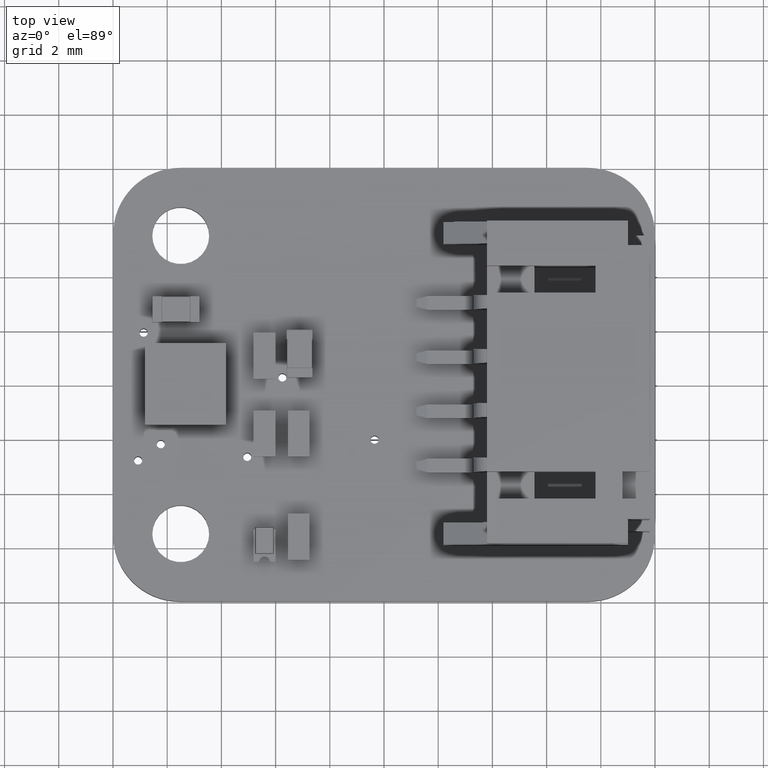
[diagram: clean part render]
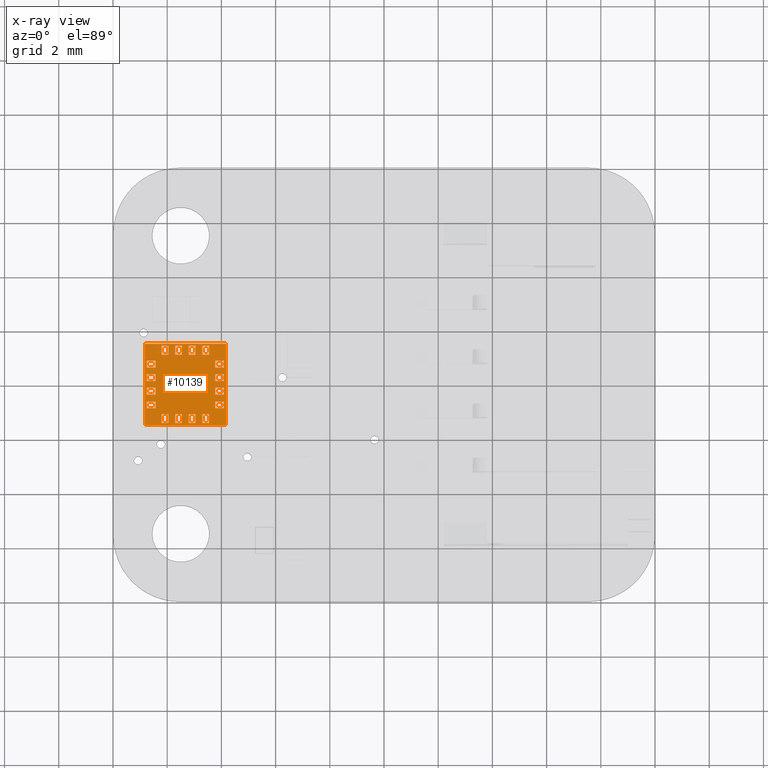
[diagram: x-ray — body ghosted, one internal face saturated and labeled with its STEP entity id]
A machine part, top view, then the same camera in x-ray: the body is ghosted and one INTERNAL B-rep face — a face not visible from any outside direction — is saturated and labeled: STEP entity #10139.
In plain terms, the highlighted planar face has unit normal (0, -0, -1).
Its self-contained STEP definition (entity closure, byte-faithful):
#9997 = EDGE_CURVE('',#9998,#10000,#10002,.T.);
#9998 = VERTEX_POINT('',#9999);
#9999 = CARTESIAN_POINT('',(1.5,0.,1.5));
#10000 = VERTEX_POINT('',#10001);
#10001 = CARTESIAN_POINT('',(1.5,0.,-1.5));
#10002 = LINE('',#10003,#10004);
#10003 = CARTESIAN_POINT('',(1.5,0.,1.5));
#10004 = VECTOR('',#10005,1.);
#10005 = DIRECTION('',(0.,0.,-1.));
#10037 = EDGE_CURVE('',#10000,#10038,#10040,.T.);
#10038 = VERTEX_POINT('',#10039);
#10039 = CARTESIAN_POINT('',(-1.5,0.,-1.5));
#10040 = LINE('',#10041,#10042);
#10041 = CARTESIAN_POINT('',(-1.5,0.,-1.5));
#10042 = VECTOR('',#10043,1.);
#10043 = DIRECTION('',(-1.,-0.,-0.));
#10068 = EDGE_CURVE('',#10038,#10069,#10071,.T.);
#10069 = VERTEX_POINT('',#10070);
#10070 = CARTESIAN_POINT('',(-1.5,0.,1.5));
#10071 = LINE('',#10072,#10073);
#10072 = CARTESIAN_POINT('',(-1.5,0.,1.5));
#10073 = VECTOR('',#10074,1.);
#10074 = DIRECTION('',(-0.,-0.,1.));
#10099 = EDGE_CURVE('',#10069,#9998,#10100,.T.);
#10100 = LINE('',#10101,#10102);
#10101 = CARTESIAN_POINT('',(-1.5,0.,1.5));
#10102 = VECTOR('',#10103,1.);
#10103 = DIRECTION('',(1.,0.,0.));
#10139 = ADVANCED_FACE('',(#10140,#10174,#10208,#10242,#10276,#10310,
    #10344,#10378,#10412,#10446,#10480,#10514,#10548,#10582,#10616,
    #10650,#10684),#10690,.T.);
#10140 = FACE_BOUND('',#10141,.T.);
#10141 = EDGE_LOOP('',(#10142,#10152,#10160,#10168));
#10142 = ORIENTED_EDGE('',*,*,#10143,.F.);
#10143 = EDGE_CURVE('',#10144,#10146,#10148,.T.);
#10144 = VERTEX_POINT('',#10145);
#10145 = CARTESIAN_POINT('',(-0.375,0.,1.425));
#10146 = VERTEX_POINT('',#10147);
#10147 = CARTESIAN_POINT('',(-0.375,-0.,1.1));
#10148 = LINE('',#10149,#10150);
#10149 = CARTESIAN_POINT('',(-0.375,0.,1.425));
#10150 = VECTOR('',#10151,1.);
#10151 = DIRECTION('',(0.,0.,-1.));
#10152 = ORIENTED_EDGE('',*,*,#10153,.F.);
#10153 = EDGE_CURVE('',#10154,#10144,#10156,.T.);
#10154 = VERTEX_POINT('',#10155);
#10155 = CARTESIAN_POINT('',(-0.125,0.,1.425));
#10156 = LINE('',#10157,#10158);
#10157 = CARTESIAN_POINT('',(-0.375,0.,1.425));
#10158 = VECTOR('',#10159,1.);
#10159 = DIRECTION('',(-1.,-0.,-0.));
#10160 = ORIENTED_EDGE('',*,*,#10161,.F.);
#10161 = EDGE_CURVE('',#10162,#10154,#10164,.T.);
#10162 = VERTEX_POINT('',#10163);
#10163 = CARTESIAN_POINT('',(-0.125,0.,1.1));
#10164 = LINE('',#10165,#10166);
#10165 = CARTESIAN_POINT('',(-0.125,0.,1.425));
#10166 = VECTOR('',#10167,1.);
#10167 = DIRECTION('',(-0.,-0.,1.));
#10168 = ORIENTED_EDGE('',*,*,#10169,.F.);
#10169 = EDGE_CURVE('',#10146,#10162,#10170,.T.);
#10170 = LINE('',#10171,#10172);
#10171 = CARTESIAN_POINT('',(-0.375,0.,1.1));
#10172 = VECTOR('',#10173,1.);
#10173 = DIRECTION('',(1.,0.,0.));
#10174 = FACE_BOUND('',#10175,.T.);
#10175 = EDGE_LOOP('',(#10176,#10186,#10194,#10202));
#10176 = ORIENTED_EDGE('',*,*,#10177,.F.);
#10177 = EDGE_CURVE('',#10178,#10180,#10182,.T.);
#10178 = VERTEX_POINT('',#10179);
#10179 = CARTESIAN_POINT('',(0.125,-0.,1.425));
#10180 = VERTEX_POINT('',#10181);
#10181 = CARTESIAN_POINT('',(0.125,0.,1.1));
#10182 = LINE('',#10183,#10184);
#10183 = CARTESIAN_POINT('',(0.125,-0.,1.425));
#10184 = VECTOR('',#10185,1.);
#10185 = DIRECTION('',(0.,0.,-1.));
#10186 = ORIENTED_EDGE('',*,*,#10187,.F.);
#10187 = EDGE_CURVE('',#10188,#10178,#10190,.T.);
#10188 = VERTEX_POINT('',#10189);
#10189 = CARTESIAN_POINT('',(0.375,-0.,1.425));
#10190 = LINE('',#10191,#10192);
#10191 = CARTESIAN_POINT('',(0.125,-0.,1.425));
#10192 = VECTOR('',#10193,1.);
#10193 = DIRECTION('',(-1.,-0.,-0.));
#10194 = ORIENTED_EDGE('',*,*,#10195,.F.);
#10195 = EDGE_CURVE('',#10196,#10188,#10198,.T.);
#10196 = VERTEX_POINT('',#10197);
#10197 = CARTESIAN_POINT('',(0.375,-0.,1.1));
#10198 = LINE('',#10199,#10200);
#10199 = CARTESIAN_POINT('',(0.375,-0.,1.425));
#10200 = VECTOR('',#10201,1.);
#10201 = DIRECTION('',(-0.,-0.,1.));
#10202 = ORIENTED_EDGE('',*,*,#10203,.F.);
#10203 = EDGE_CURVE('',#10180,#10196,#10204,.T.);
#10204 = LINE('',#10205,#10206);
#10205 = CARTESIAN_POINT('',(0.125,-0.,1.1));
#10206 = VECTOR('',#10207,1.);
#10207 = DIRECTION('',(1.,0.,0.));
#10208 = FACE_BOUND('',#10209,.T.);
#10209 = EDGE_LOOP('',(#10210,#10220,#10228,#10236));
#10210 = ORIENTED_EDGE('',*,*,#10211,.F.);
#10211 = EDGE_CURVE('',#10212,#10214,#10216,.T.);
#10212 = VERTEX_POINT('',#10213);
#10213 = CARTESIAN_POINT('',(0.625,-0.,1.425));
#10214 = VERTEX_POINT('',#10215);
#10215 = CARTESIAN_POINT('',(0.625,0.,1.1));
#10216 = LINE('',#10217,#10218);
#10217 = CARTESIAN_POINT('',(0.625,-0.,1.425));
#10218 = VECTOR('',#10219,1.);
#10219 = DIRECTION('',(0.,0.,-1.));
#10220 = ORIENTED_EDGE('',*,*,#10221,.F.);
#10221 = EDGE_CURVE('',#10222,#10212,#10224,.T.);
#10222 = VERTEX_POINT('',#10223);
#10223 = CARTESIAN_POINT('',(0.875,-0.,1.425));
#10224 = LINE('',#10225,#10226);
#10225 = CARTESIAN_POINT('',(0.625,-0.,1.425));
#10226 = VECTOR('',#10227,1.);
#10227 = DIRECTION('',(-1.,-0.,-0.));
#10228 = ORIENTED_EDGE('',*,*,#10229,.F.);
#10229 = EDGE_CURVE('',#10230,#10222,#10232,.T.);
#10230 = VERTEX_POINT('',#10231);
#10231 = CARTESIAN_POINT('',(0.875,-0.,1.1));
#10232 = LINE('',#10233,#10234);
#10233 = CARTESIAN_POINT('',(0.875,-0.,1.425));
#10234 = VECTOR('',#10235,1.);
#10235 = DIRECTION('',(-0.,-0.,1.));
#10236 = ORIENTED_EDGE('',*,*,#10237,.F.);
#10237 = EDGE_CURVE('',#10214,#10230,#10238,.T.);
#10238 = LINE('',#10239,#10240);
#10239 = CARTESIAN_POINT('',(0.625,-0.,1.1));
#10240 = VECTOR('',#10241,1.);
#10241 = DIRECTION('',(1.,0.,0.));
#10242 = FACE_BOUND('',#10243,.T.);
#10243 = EDGE_LOOP('',(#10244,#10254,#10262,#10270));
#10244 = ORIENTED_EDGE('',*,*,#10245,.F.);
#10245 = EDGE_CURVE('',#10246,#10248,#10250,.T.);
#10246 = VERTEX_POINT('',#10247);
#10247 = CARTESIAN_POINT('',(1.425,-0.,0.875));
#10248 = VERTEX_POINT('',#10249);
#10249 = CARTESIAN_POINT('',(1.1,0.,0.875));
#10250 = LINE('',#10251,#10252);
#10251 = CARTESIAN_POINT('',(1.425,-0.,0.875));
#10252 = VECTOR('',#10253,1.);
#10253 = DIRECTION('',(-1.,0.,0.));
#10254 = ORIENTED_EDGE('',*,*,#10255,.F.);
#10255 = EDGE_CURVE('',#10256,#10246,#10258,.T.);
#10256 = VERTEX_POINT('',#10257);
#10257 = CARTESIAN_POINT('',(1.425,-0.,0.625));
#10258 = LINE('',#10259,#10260);
#10259 = CARTESIAN_POINT('',(1.425,-0.,0.875));
#10260 = VECTOR('',#10261,1.);
#10261 = DIRECTION('',(-0.,-0.,1.));
#10262 = ORIENTED_EDGE('',*,*,#10263,.F.);
#10263 = EDGE_CURVE('',#10264,#10256,#10266,.T.);
#10264 = VERTEX_POINT('',#10265);
#10265 = CARTESIAN_POINT('',(1.1,-0.,0.625));
#10266 = LINE('',#10267,#10268);
#10267 = CARTESIAN_POINT('',(1.425,-0.,0.625));
#10268 = VECTOR('',#10269,1.);
#10269 = DIRECTION('',(1.,-0.,-0.));
#10270 = ORIENTED_EDGE('',*,*,#10271,.F.);
#10271 = EDGE_CURVE('',#10248,#10264,#10272,.T.);
#10272 = LINE('',#10273,#10274);
#10273 = CARTESIAN_POINT('',(1.1,-0.,0.875));
#10274 = VECTOR('',#10275,1.);
#10275 = DIRECTION('',(0.,0.,-1.));
#10276 = FACE_BOUND('',#10277,.T.);
#10277 = EDGE_LOOP('',(#10278,#10288,#10296,#10304));
#10278 = ORIENTED_EDGE('',*,*,#10279,.F.);
#10279 = EDGE_CURVE('',#10280,#10282,#10284,.T.);
#10280 = VERTEX_POINT('',#10281);
#10281 = CARTESIAN_POINT('',(1.425,-0.,0.375));
#10282 = VERTEX_POINT('',#10283);
#10283 = CARTESIAN_POINT('',(1.1,0.,0.375));
#10284 = LINE('',#10285,#10286);
#10285 = CARTESIAN_POINT('',(1.425,-0.,0.375));
#10286 = VECTOR('',#10287,1.);
#10287 = DIRECTION('',(-1.,0.,-1.668003342285E-16));
#10288 = ORIENTED_EDGE('',*,*,#10289,.F.);
#10289 = EDGE_CURVE('',#10290,#10280,#10292,.T.);
#10290 = VERTEX_POINT('',#10291);
#10291 = CARTESIAN_POINT('',(1.425,-0.,0.125));
#10292 = LINE('',#10293,#10294);
#10293 = CARTESIAN_POINT('',(1.425,-0.,0.375));
#10294 = VECTOR('',#10295,1.);
#10295 = DIRECTION('',(-0.,-0.,1.));
#10296 = ORIENTED_EDGE('',*,*,#10297,.F.);
#10297 = EDGE_CURVE('',#10298,#10290,#10300,.T.);
#10298 = VERTEX_POINT('',#10299);
#10299 = CARTESIAN_POINT('',(1.1,-0.,0.125));
#10300 = LINE('',#10301,#10302);
#10301 = CARTESIAN_POINT('',(1.425,-0.,0.125));
#10302 = VECTOR('',#10303,1.);
#10303 = DIRECTION('',(1.,-0.,8.340016711427E-17));
#10304 = ORIENTED_EDGE('',*,*,#10305,.F.);
#10305 = EDGE_CURVE('',#10282,#10298,#10306,.T.);
#10306 = LINE('',#10307,#10308);
#10307 = CARTESIAN_POINT('',(1.1,-0.,0.375));
#10308 = VECTOR('',#10309,1.);
#10309 = DIRECTION('',(0.,0.,-1.));
#10310 = FACE_BOUND('',#10311,.T.);
#10311 = EDGE_LOOP('',(#10312,#10322,#10330,#10338));
#10312 = ORIENTED_EDGE('',*,*,#10313,.F.);
#10313 = EDGE_CURVE('',#10314,#10316,#10318,.T.);
#10314 = VERTEX_POINT('',#10315);
#10315 = CARTESIAN_POINT('',(1.425,0.,-0.125));
#10316 = VERTEX_POINT('',#10317);
#10317 = CARTESIAN_POINT('',(1.1,0.,-0.125));
#10318 = LINE('',#10319,#10320);
#10319 = CARTESIAN_POINT('',(1.425,0.,-0.125));
#10320 = VECTOR('',#10321,1.);
#10321 = DIRECTION('',(-1.,0.,-8.340016711427E-17));
#10322 = ORIENTED_EDGE('',*,*,#10323,.F.);
#10323 = EDGE_CURVE('',#10324,#10314,#10326,.T.);
#10324 = VERTEX_POINT('',#10325);
#10325 = CARTESIAN_POINT('',(1.425,0.,-0.375));
#10326 = LINE('',#10327,#10328);
#10327 = CARTESIAN_POINT('',(1.425,0.,-0.125));
#10328 = VECTOR('',#10329,1.);
#10329 = DIRECTION('',(-0.,-0.,1.));
#10330 = ORIENTED_EDGE('',*,*,#10331,.F.);
#10331 = EDGE_CURVE('',#10332,#10324,#10334,.T.);
#10332 = VERTEX_POINT('',#10333);
#10333 = CARTESIAN_POINT('',(1.1,0.,-0.375));
#10334 = LINE('',#10335,#10336);
#10335 = CARTESIAN_POINT('',(1.425,0.,-0.375));
#10336 = VECTOR('',#10337,1.);
#10337 = DIRECTION('',(1.,-0.,1.668003342285E-16));
#10338 = ORIENTED_EDGE('',*,*,#10339,.F.);
#10339 = EDGE_CURVE('',#10316,#10332,#10340,.T.);
#10340 = LINE('',#10341,#10342);
#10341 = CARTESIAN_POINT('',(1.1,0.,-0.125));
#10342 = VECTOR('',#10343,1.);
#10343 = DIRECTION('',(0.,0.,-1.));
#10344 = FACE_BOUND('',#10345,.T.);
#10345 = EDGE_LOOP('',(#10346,#10356,#10364,#10372));
#10346 = ORIENTED_EDGE('',*,*,#10347,.F.);
#10347 = EDGE_CURVE('',#10348,#10350,#10352,.T.);
#10348 = VERTEX_POINT('',#10349);
#10349 = CARTESIAN_POINT('',(1.425,0.,-0.625));
#10350 = VERTEX_POINT('',#10351);
#10351 = CARTESIAN_POINT('',(1.1,0.,-0.625));
#10352 = LINE('',#10353,#10354);
#10353 = CARTESIAN_POINT('',(1.425,0.,-0.625));
#10354 = VECTOR('',#10355,1.);
#10355 = DIRECTION('',(-1.,0.,0.));
#10356 = ORIENTED_EDGE('',*,*,#10357,.F.);
#10357 = EDGE_CURVE('',#10358,#10348,#10360,.T.);
#10358 = VERTEX_POINT('',#10359);
#10359 = CARTESIAN_POINT('',(1.425,0.,-0.875));
#10360 = LINE('',#10361,#10362);
#10361 = CARTESIAN_POINT('',(1.425,0.,-0.625));
#10362 = VECTOR('',#10363,1.);
#10363 = DIRECTION('',(-0.,-0.,1.));
#10364 = ORIENTED_EDGE('',*,*,#10365,.F.);
#10365 = EDGE_CURVE('',#10366,#10358,#10368,.T.);
#10366 = VERTEX_POINT('',#10367);
#10367 = CARTESIAN_POINT('',(1.1,0.,-0.875));
#10368 = LINE('',#10369,#10370);
#10369 = CARTESIAN_POINT('',(1.425,0.,-0.875));
#10370 = VECTOR('',#10371,1.);
#10371 = DIRECTION('',(1.,-0.,-0.));
#10372 = ORIENTED_EDGE('',*,*,#10373,.F.);
#10373 = EDGE_CURVE('',#10350,#10366,#10374,.T.);
#10374 = LINE('',#10375,#10376);
#10375 = CARTESIAN_POINT('',(1.1,0.,-0.625));
#10376 = VECTOR('',#10377,1.);
#10377 = DIRECTION('',(0.,0.,-1.));
#10378 = FACE_BOUND('',#10379,.T.);
#10379 = EDGE_LOOP('',(#10380,#10390,#10398,#10406));
#10380 = ORIENTED_EDGE('',*,*,#10381,.F.);
#10381 = EDGE_CURVE('',#10382,#10384,#10386,.T.);
#10382 = VERTEX_POINT('',#10383);
#10383 = CARTESIAN_POINT('',(0.875,0.,-1.425));
#10384 = VERTEX_POINT('',#10385);
#10385 = CARTESIAN_POINT('',(0.875,-0.,-1.1));
#10386 = LINE('',#10387,#10388);
#10387 = CARTESIAN_POINT('',(0.875,0.,-1.425));
#10388 = VECTOR('',#10389,1.);
#10389 = DIRECTION('',(-3.336006684571E-16,0.,1.));
#10390 = ORIENTED_EDGE('',*,*,#10391,.F.);
#10391 = EDGE_CURVE('',#10392,#10382,#10394,.T.);
#10392 = VERTEX_POINT('',#10393);
#10393 = CARTESIAN_POINT('',(0.625,0.,-1.425));
#10394 = LINE('',#10395,#10396);
#10395 = CARTESIAN_POINT('',(0.875,0.,-1.425));
#10396 = VECTOR('',#10397,1.);
#10397 = DIRECTION('',(1.,-0.,-0.));
#10398 = ORIENTED_EDGE('',*,*,#10399,.F.);
#10399 = EDGE_CURVE('',#10400,#10392,#10402,.T.);
#10400 = VERTEX_POINT('',#10401);
#10401 = CARTESIAN_POINT('',(0.625,0.,-1.1));
#10402 = LINE('',#10403,#10404);
#10403 = CARTESIAN_POINT('',(0.625,0.,-1.425));
#10404 = VECTOR('',#10405,1.);
#10405 = DIRECTION('',(3.336006684571E-16,-0.,-1.));
#10406 = ORIENTED_EDGE('',*,*,#10407,.F.);
#10407 = EDGE_CURVE('',#10384,#10400,#10408,.T.);
#10408 = LINE('',#10409,#10410);
#10409 = CARTESIAN_POINT('',(0.875,0.,-1.1));
#10410 = VECTOR('',#10411,1.);
#10411 = DIRECTION('',(-1.,0.,0.));
#10412 = FACE_BOUND('',#10413,.T.);
#10413 = EDGE_LOOP('',(#10414,#10424,#10432,#10440));
#10414 = ORIENTED_EDGE('',*,*,#10415,.F.);
#10415 = EDGE_CURVE('',#10416,#10418,#10420,.T.);
#10416 = VERTEX_POINT('',#10417);
#10417 = CARTESIAN_POINT('',(0.375,0.,-1.425));
#10418 = VERTEX_POINT('',#10419);
#10419 = CARTESIAN_POINT('',(0.375,-0.,-1.1));
#10420 = LINE('',#10421,#10422);
#10421 = CARTESIAN_POINT('',(0.375,0.,-1.425));
#10422 = VECTOR('',#10423,1.);
#10423 = DIRECTION('',(-1.668003342285E-16,0.,1.));
#10424 = ORIENTED_EDGE('',*,*,#10425,.F.);
#10425 = EDGE_CURVE('',#10426,#10416,#10428,.T.);
#10426 = VERTEX_POINT('',#10427);
#10427 = CARTESIAN_POINT('',(0.125,0.,-1.425));
#10428 = LINE('',#10429,#10430);
#10429 = CARTESIAN_POINT('',(0.375,0.,-1.425));
#10430 = VECTOR('',#10431,1.);
#10431 = DIRECTION('',(1.,-0.,-0.));
#10432 = ORIENTED_EDGE('',*,*,#10433,.F.);
#10433 = EDGE_CURVE('',#10434,#10426,#10436,.T.);
#10434 = VERTEX_POINT('',#10435);
#10435 = CARTESIAN_POINT('',(0.125,0.,-1.1));
#10436 = LINE('',#10437,#10438);
#10437 = CARTESIAN_POINT('',(0.125,0.,-1.425));
#10438 = VECTOR('',#10439,1.);
#10439 = DIRECTION('',(8.340016711427E-17,-0.,-1.));
#10440 = ORIENTED_EDGE('',*,*,#10441,.F.);
#10441 = EDGE_CURVE('',#10418,#10434,#10442,.T.);
#10442 = LINE('',#10443,#10444);
#10443 = CARTESIAN_POINT('',(0.375,0.,-1.1));
#10444 = VECTOR('',#10445,1.);
#10445 = DIRECTION('',(-1.,0.,0.));
#10446 = FACE_BOUND('',#10447,.T.);
#10447 = EDGE_LOOP('',(#10448,#10458,#10466,#10474));
#10448 = ORIENTED_EDGE('',*,*,#10449,.F.);
#10449 = EDGE_CURVE('',#10450,#10452,#10454,.T.);
#10450 = VERTEX_POINT('',#10451);
#10451 = CARTESIAN_POINT('',(-0.125,0.,-1.425));
#10452 = VERTEX_POINT('',#10453);
#10453 = CARTESIAN_POINT('',(-0.125,0.,-1.1));
#10454 = LINE('',#10455,#10456);
#10455 = CARTESIAN_POINT('',(-0.125,0.,-1.425));
#10456 = VECTOR('',#10457,1.);
#10457 = DIRECTION('',(-8.340016711427E-17,0.,1.));
#10458 = ORIENTED_EDGE('',*,*,#10459,.F.);
#10459 = EDGE_CURVE('',#10460,#10450,#10462,.T.);
#10460 = VERTEX_POINT('',#10461);
#10461 = CARTESIAN_POINT('',(-0.375,0.,-1.425));
#10462 = LINE('',#10463,#10464);
#10463 = CARTESIAN_POINT('',(-0.125,0.,-1.425));
#10464 = VECTOR('',#10465,1.);
#10465 = DIRECTION('',(1.,-0.,-0.));
#10466 = ORIENTED_EDGE('',*,*,#10467,.F.);
#10467 = EDGE_CURVE('',#10468,#10460,#10470,.T.);
#10468 = VERTEX_POINT('',#10469);
#10469 = CARTESIAN_POINT('',(-0.375,0.,-1.1));
#10470 = LINE('',#10471,#10472);
#10471 = CARTESIAN_POINT('',(-0.375,0.,-1.425));
#10472 = VECTOR('',#10473,1.);
#10473 = DIRECTION('',(1.668003342285E-16,-0.,-1.));
#10474 = ORIENTED_EDGE('',*,*,#10475,.F.);
#10475 = EDGE_CURVE('',#10452,#10468,#10476,.T.);
#10476 = LINE('',#10477,#10478);
#10477 = CARTESIAN_POINT('',(-0.125,0.,-1.1));
#10478 = VECTOR('',#10479,1.);
#10479 = DIRECTION('',(-1.,0.,0.));
#10480 = FACE_BOUND('',#10481,.T.);
#10481 = EDGE_LOOP('',(#10482,#10492,#10500,#10508));
#10482 = ORIENTED_EDGE('',*,*,#10483,.F.);
#10483 = EDGE_CURVE('',#10484,#10486,#10488,.T.);
#10484 = VERTEX_POINT('',#10485);
#10485 = CARTESIAN_POINT('',(-0.625,0.,-1.425));
#10486 = VERTEX_POINT('',#10487);
#10487 = CARTESIAN_POINT('',(-0.625,0.,-1.1));
#10488 = LINE('',#10489,#10490);
#10489 = CARTESIAN_POINT('',(-0.625,0.,-1.425));
#10490 = VECTOR('',#10491,1.);
#10491 = DIRECTION('',(-3.336006684571E-16,0.,1.));
#10492 = ORIENTED_EDGE('',*,*,#10493,.F.);
#10493 = EDGE_CURVE('',#10494,#10484,#10496,.T.);
#10494 = VERTEX_POINT('',#10495);
#10495 = CARTESIAN_POINT('',(-0.875,0.,-1.425));
#10496 = LINE('',#10497,#10498);
#10497 = CARTESIAN_POINT('',(-0.625,0.,-1.425));
#10498 = VECTOR('',#10499,1.);
#10499 = DIRECTION('',(1.,-0.,-0.));
#10500 = ORIENTED_EDGE('',*,*,#10501,.F.);
#10501 = EDGE_CURVE('',#10502,#10494,#10504,.T.);
#10502 = VERTEX_POINT('',#10503);
#10503 = CARTESIAN_POINT('',(-0.875,0.,-1.1));
#10504 = LINE('',#10505,#10506);
#10505 = CARTESIAN_POINT('',(-0.875,0.,-1.425));
#10506 = VECTOR('',#10507,1.);
#10507 = DIRECTION('',(3.336006684571E-16,-0.,-1.));
#10508 = ORIENTED_EDGE('',*,*,#10509,.F.);
#10509 = EDGE_CURVE('',#10486,#10502,#10510,.T.);
#10510 = LINE('',#10511,#10512);
#10511 = CARTESIAN_POINT('',(-0.625,0.,-1.1));
#10512 = VECTOR('',#10513,1.);
#10513 = DIRECTION('',(-1.,0.,0.));
#10514 = FACE_BOUND('',#10515,.T.);
#10515 = EDGE_LOOP('',(#10516,#10526,#10534,#10542));
#10516 = ORIENTED_EDGE('',*,*,#10517,.F.);
#10517 = EDGE_CURVE('',#10518,#10520,#10522,.T.);
#10518 = VERTEX_POINT('',#10519);
#10519 = CARTESIAN_POINT('',(-1.425,0.,-0.875));
#10520 = VERTEX_POINT('',#10521);
#10521 = CARTESIAN_POINT('',(-1.1,-0.,-0.875));
#10522 = LINE('',#10523,#10524);
#10523 = CARTESIAN_POINT('',(-1.425,0.,-0.875));
#10524 = VECTOR('',#10525,1.);
#10525 = DIRECTION('',(1.,0.,0.));
#10526 = ORIENTED_EDGE('',*,*,#10527,.F.);
#10527 = EDGE_CURVE('',#10528,#10518,#10530,.T.);
#10528 = VERTEX_POINT('',#10529);
#10529 = CARTESIAN_POINT('',(-1.425,0.,-0.625));
#10530 = LINE('',#10531,#10532);
#10531 = CARTESIAN_POINT('',(-1.425,0.,-0.875));
#10532 = VECTOR('',#10533,1.);
#10533 = DIRECTION('',(-0.,-0.,-1.));
#10534 = ORIENTED_EDGE('',*,*,#10535,.F.);
#10535 = EDGE_CURVE('',#10536,#10528,#10538,.T.);
#10536 = VERTEX_POINT('',#10537);
#10537 = CARTESIAN_POINT('',(-1.1,0.,-0.625));
#10538 = LINE('',#10539,#10540);
#10539 = CARTESIAN_POINT('',(-1.425,0.,-0.625));
#10540 = VECTOR('',#10541,1.);
#10541 = DIRECTION('',(-1.,-0.,-0.));
#10542 = ORIENTED_EDGE('',*,*,#10543,.F.);
#10543 = EDGE_CURVE('',#10520,#10536,#10544,.T.);
#10544 = LINE('',#10545,#10546);
#10545 = CARTESIAN_POINT('',(-1.1,0.,-0.875));
#10546 = VECTOR('',#10547,1.);
#10547 = DIRECTION('',(0.,0.,1.));
#10548 = FACE_BOUND('',#10549,.T.);
#10549 = EDGE_LOOP('',(#10550,#10560,#10568,#10576));
#10550 = ORIENTED_EDGE('',*,*,#10551,.F.);
#10551 = EDGE_CURVE('',#10552,#10554,#10556,.T.);
#10552 = VERTEX_POINT('',#10553);
#10553 = CARTESIAN_POINT('',(-1.425,0.,-0.375));
#10554 = VERTEX_POINT('',#10555);
#10555 = CARTESIAN_POINT('',(-1.1,-0.,-0.375));
#10556 = LINE('',#10557,#10558);
#10557 = CARTESIAN_POINT('',(-1.425,0.,-0.375));
#10558 = VECTOR('',#10559,1.);
#10559 = DIRECTION('',(1.,0.,1.668003342285E-16));
#10560 = ORIENTED_EDGE('',*,*,#10561,.F.);
#10561 = EDGE_CURVE('',#10562,#10552,#10564,.T.);
#10562 = VERTEX_POINT('',#10563);
#10563 = CARTESIAN_POINT('',(-1.425,0.,-0.125));
#10564 = LINE('',#10565,#10566);
#10565 = CARTESIAN_POINT('',(-1.425,0.,-0.375));
#10566 = VECTOR('',#10567,1.);
#10567 = DIRECTION('',(-0.,-0.,-1.));
#10568 = ORIENTED_EDGE('',*,*,#10569,.F.);
#10569 = EDGE_CURVE('',#10570,#10562,#10572,.T.);
#10570 = VERTEX_POINT('',#10571);
#10571 = CARTESIAN_POINT('',(-1.1,0.,-0.125));
#10572 = LINE('',#10573,#10574);
#10573 = CARTESIAN_POINT('',(-1.425,0.,-0.125));
#10574 = VECTOR('',#10575,1.);
#10575 = DIRECTION('',(-1.,-0.,-2.502005013428E-16));
#10576 = ORIENTED_EDGE('',*,*,#10577,.F.);
#10577 = EDGE_CURVE('',#10554,#10570,#10578,.T.);
#10578 = LINE('',#10579,#10580);
#10579 = CARTESIAN_POINT('',(-1.1,0.,-0.375));
#10580 = VECTOR('',#10581,1.);
#10581 = DIRECTION('',(0.,0.,1.));
#10582 = FACE_BOUND('',#10583,.T.);
#10583 = EDGE_LOOP('',(#10584,#10594,#10602,#10610));
#10584 = ORIENTED_EDGE('',*,*,#10585,.F.);
#10585 = EDGE_CURVE('',#10586,#10588,#10590,.T.);
#10586 = VERTEX_POINT('',#10587);
#10587 = CARTESIAN_POINT('',(-1.425,0.,0.125));
#10588 = VERTEX_POINT('',#10589);
#10589 = CARTESIAN_POINT('',(-1.1,0.,0.125));
#10590 = LINE('',#10591,#10592);
#10591 = CARTESIAN_POINT('',(-1.425,0.,0.125));
#10592 = VECTOR('',#10593,1.);
#10593 = DIRECTION('',(1.,0.,2.502005013428E-16));
#10594 = ORIENTED_EDGE('',*,*,#10595,.F.);
#10595 = EDGE_CURVE('',#10596,#10586,#10598,.T.);
#10596 = VERTEX_POINT('',#10597);
#10597 = CARTESIAN_POINT('',(-1.425,0.,0.375));
#10598 = LINE('',#10599,#10600);
#10599 = CARTESIAN_POINT('',(-1.425,0.,0.125));
#10600 = VECTOR('',#10601,1.);
#10601 = DIRECTION('',(-0.,-0.,-1.));
#10602 = ORIENTED_EDGE('',*,*,#10603,.F.);
#10603 = EDGE_CURVE('',#10604,#10596,#10606,.T.);
#10604 = VERTEX_POINT('',#10605);
#10605 = CARTESIAN_POINT('',(-1.1,0.,0.375));
#10606 = LINE('',#10607,#10608);
#10607 = CARTESIAN_POINT('',(-1.425,0.,0.375));
#10608 = VECTOR('',#10609,1.);
#10609 = DIRECTION('',(-1.,-0.,-1.668003342285E-16));
#10610 = ORIENTED_EDGE('',*,*,#10611,.F.);
#10611 = EDGE_CURVE('',#10588,#10604,#10612,.T.);
#10612 = LINE('',#10613,#10614);
#10613 = CARTESIAN_POINT('',(-1.1,0.,0.125));
#10614 = VECTOR('',#10615,1.);
#10615 = DIRECTION('',(0.,0.,1.));
#10616 = FACE_BOUND('',#10617,.T.);
#10617 = EDGE_LOOP('',(#10618,#10628,#10636,#10644));
#10618 = ORIENTED_EDGE('',*,*,#10619,.F.);
#10619 = EDGE_CURVE('',#10620,#10622,#10624,.T.);
#10620 = VERTEX_POINT('',#10621);
#10621 = CARTESIAN_POINT('',(-1.425,0.,0.625));
#10622 = VERTEX_POINT('',#10623);
#10623 = CARTESIAN_POINT('',(-1.1,0.,0.625));
#10624 = LINE('',#10625,#10626);
#10625 = CARTESIAN_POINT('',(-1.425,0.,0.625));
#10626 = VECTOR('',#10627,1.);
#10627 = DIRECTION('',(1.,0.,0.));
#10628 = ORIENTED_EDGE('',*,*,#10629,.F.);
#10629 = EDGE_CURVE('',#10630,#10620,#10632,.T.);
#10630 = VERTEX_POINT('',#10631);
#10631 = CARTESIAN_POINT('',(-1.425,0.,0.875));
#10632 = LINE('',#10633,#10634);
#10633 = CARTESIAN_POINT('',(-1.425,0.,0.625));
#10634 = VECTOR('',#10635,1.);
#10635 = DIRECTION('',(-0.,-0.,-1.));
#10636 = ORIENTED_EDGE('',*,*,#10637,.F.);
#10637 = EDGE_CURVE('',#10638,#10630,#10640,.T.);
#10638 = VERTEX_POINT('',#10639);
#10639 = CARTESIAN_POINT('',(-1.1,0.,0.875));
#10640 = LINE('',#10641,#10642);
#10641 = CARTESIAN_POINT('',(-1.425,0.,0.875));
#10642 = VECTOR('',#10643,1.);
#10643 = DIRECTION('',(-1.,-0.,-0.));
#10644 = ORIENTED_EDGE('',*,*,#10645,.F.);
#10645 = EDGE_CURVE('',#10622,#10638,#10646,.T.);
#10646 = LINE('',#10647,#10648);
#10647 = CARTESIAN_POINT('',(-1.1,0.,0.625));
#10648 = VECTOR('',#10649,1.);
#10649 = DIRECTION('',(0.,0.,1.));
#10650 = FACE_BOUND('',#10651,.T.);
#10651 = EDGE_LOOP('',(#10652,#10662,#10670,#10678));
#10652 = ORIENTED_EDGE('',*,*,#10653,.F.);
#10653 = EDGE_CURVE('',#10654,#10656,#10658,.T.);
#10654 = VERTEX_POINT('',#10655);
#10655 = CARTESIAN_POINT('',(-0.875,0.,1.425));
#10656 = VERTEX_POINT('',#10657);
#10657 = CARTESIAN_POINT('',(-0.875,-0.,1.1));
#10658 = LINE('',#10659,#10660);
#10659 = CARTESIAN_POINT('',(-0.875,0.,1.425));
#10660 = VECTOR('',#10661,1.);
#10661 = DIRECTION('',(0.,0.,-1.));
#10662 = ORIENTED_EDGE('',*,*,#10663,.F.);
#10663 = EDGE_CURVE('',#10664,#10654,#10666,.T.);
#10664 = VERTEX_POINT('',#10665);
#10665 = CARTESIAN_POINT('',(-0.625,0.,1.425));
#10666 = LINE('',#10667,#10668);
#10667 = CARTESIAN_POINT('',(-0.875,0.,1.425));
#10668 = VECTOR('',#10669,1.);
#10669 = DIRECTION('',(-1.,-0.,-0.));
#10670 = ORIENTED_EDGE('',*,*,#10671,.F.);
#10671 = EDGE_CURVE('',#10672,#10664,#10674,.T.);
#10672 = VERTEX_POINT('',#10673);
#10673 = CARTESIAN_POINT('',(-0.625,0.,1.1));
#10674 = LINE('',#10675,#10676);
#10675 = CARTESIAN_POINT('',(-0.625,0.,1.425));
#10676 = VECTOR('',#10677,1.);
#10677 = DIRECTION('',(-0.,-0.,1.));
#10678 = ORIENTED_EDGE('',*,*,#10679,.F.);
#10679 = EDGE_CURVE('',#10656,#10672,#10680,.T.);
#10680 = LINE('',#10681,#10682);
#10681 = CARTESIAN_POINT('',(-0.875,0.,1.1));
#10682 = VECTOR('',#10683,1.);
#10683 = DIRECTION('',(1.,0.,0.));
#10684 = FACE_BOUND('',#10685,.T.);
#10685 = EDGE_LOOP('',(#10686,#10687,#10688,#10689));
#10686 = ORIENTED_EDGE('',*,*,#9997,.F.);
#10687 = ORIENTED_EDGE('',*,*,#10099,.F.);
#10688 = ORIENTED_EDGE('',*,*,#10068,.F.);
#10689 = ORIENTED_EDGE('',*,*,#10037,.F.);
#10690 = PLANE('',#10691);
#10691 = AXIS2_PLACEMENT_3D('',#10692,#10693,#10694);
#10692 = CARTESIAN_POINT('',(0.,0.,0.));
#10693 = DIRECTION('',(0.,-1.,0.));
#10694 = DIRECTION('',(0.,-0.,-1.));